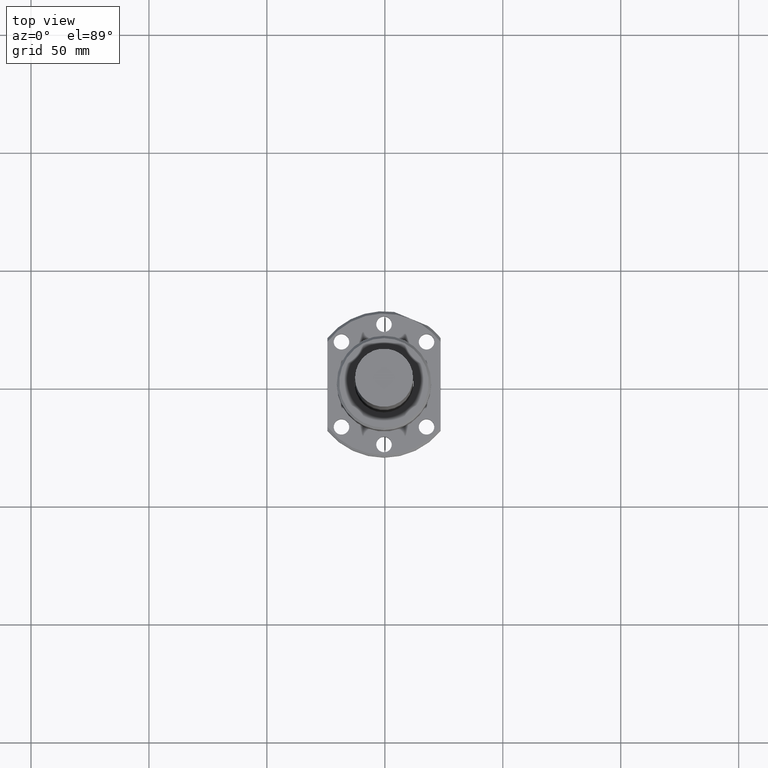
[diagram: clean part render]
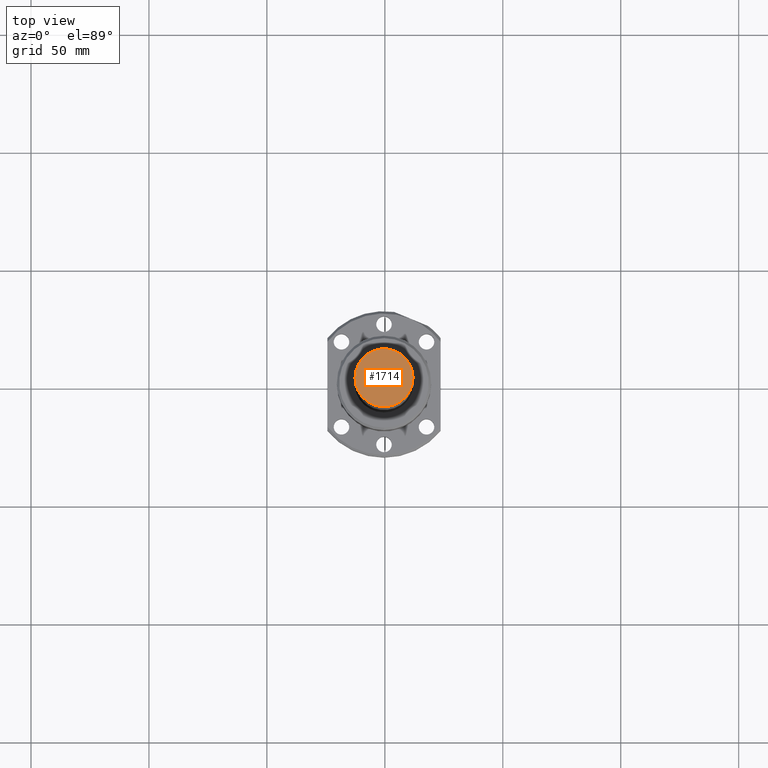
[diagram: same view with one face highlighted and labeled with its STEP entity id]
A machine part, top view. The second image highlights one B-rep face of the part: STEP entity #1714.
In plain terms, the highlighted planar face has unit normal (0, 0, 1).
Its self-contained STEP definition (entity closure, byte-faithful):
#29 = EDGE_LOOP ( 'NONE', ( #934, #1544 ) ) ;
#72 = AXIS2_PLACEMENT_3D ( 'NONE', #361, #358, #357 ) ;
#88 = VERTEX_POINT ( 'NONE', #730 ) ;
#114 = FACE_OUTER_BOUND ( 'NONE', #29, .T. ) ;
#253 = AXIS2_PLACEMENT_3D ( 'NONE', #1665, #1663, #1660 ) ;
#285 = DIRECTION ( 'NONE',  ( 1.000000000000000000, 0.0000000000000000000, 0.0000000000000000000 ) ) ;
#292 = DIRECTION ( 'NONE',  ( 0.0000000000000000000, 0.0000000000000000000, 1.000000000000000000 ) ) ;
#295 = CARTESIAN_POINT ( 'NONE',  ( 0.0000000000000000000, 0.0000000000000000000, 0.0000000000000000000 ) ) ;
#357 = DIRECTION ( 'NONE',  ( 1.000000000000000000, 0.0000000000000000000, 0.0000000000000000000 ) ) ;
#358 = DIRECTION ( 'NONE',  ( 0.0000000000000000000, 0.0000000000000000000, 1.000000000000000000 ) ) ;
#361 = CARTESIAN_POINT ( 'NONE',  ( 0.0000000000000000000, 0.0000000000000000000, 0.0000000000000000000 ) ) ;
#730 = CARTESIAN_POINT ( 'NONE',  ( -12.30000000000000100, 1.506315562951244400E-015, 0.0000000000000000000 ) ) ;
#750 = CARTESIAN_POINT ( 'NONE',  ( 12.30000000000000100, 0.0000000000000000000, 0.0000000000000000000 ) ) ;
#887 = VERTEX_POINT ( 'NONE', #750 ) ;
#934 = ORIENTED_EDGE ( 'NONE', *, *, #1201, .T. ) ;
#1201 = EDGE_CURVE ( 'NONE', #887, #88, #1558, .T. ) ;
#1325 = EDGE_CURVE ( 'NONE', #88, #887, #1526, .T. ) ;
#1483 = AXIS2_PLACEMENT_3D ( 'NONE', #295, #292, #285 ) ;
#1526 = CIRCLE ( 'NONE', #1483, 12.30000000000000100 ) ;
#1544 = ORIENTED_EDGE ( 'NONE', *, *, #1325, .T. ) ;
#1558 = CIRCLE ( 'NONE', #72, 12.30000000000000100 ) ;
#1660 = DIRECTION ( 'NONE',  ( 1.000000000000000000, 0.0000000000000000000, 0.0000000000000000000 ) ) ;
#1663 = DIRECTION ( 'NONE',  ( 0.0000000000000000000, 0.0000000000000000000, 1.000000000000000000 ) ) ;
#1665 = CARTESIAN_POINT ( 'NONE',  ( -12.44760000000000000, -12.44760000000000000, 0.0000000000000000000 ) ) ;
#1667 = PLANE ( 'NONE',  #253 ) ;
#1714 = ADVANCED_FACE ( 'NONE', ( #114 ), #1667, .T. ) ;